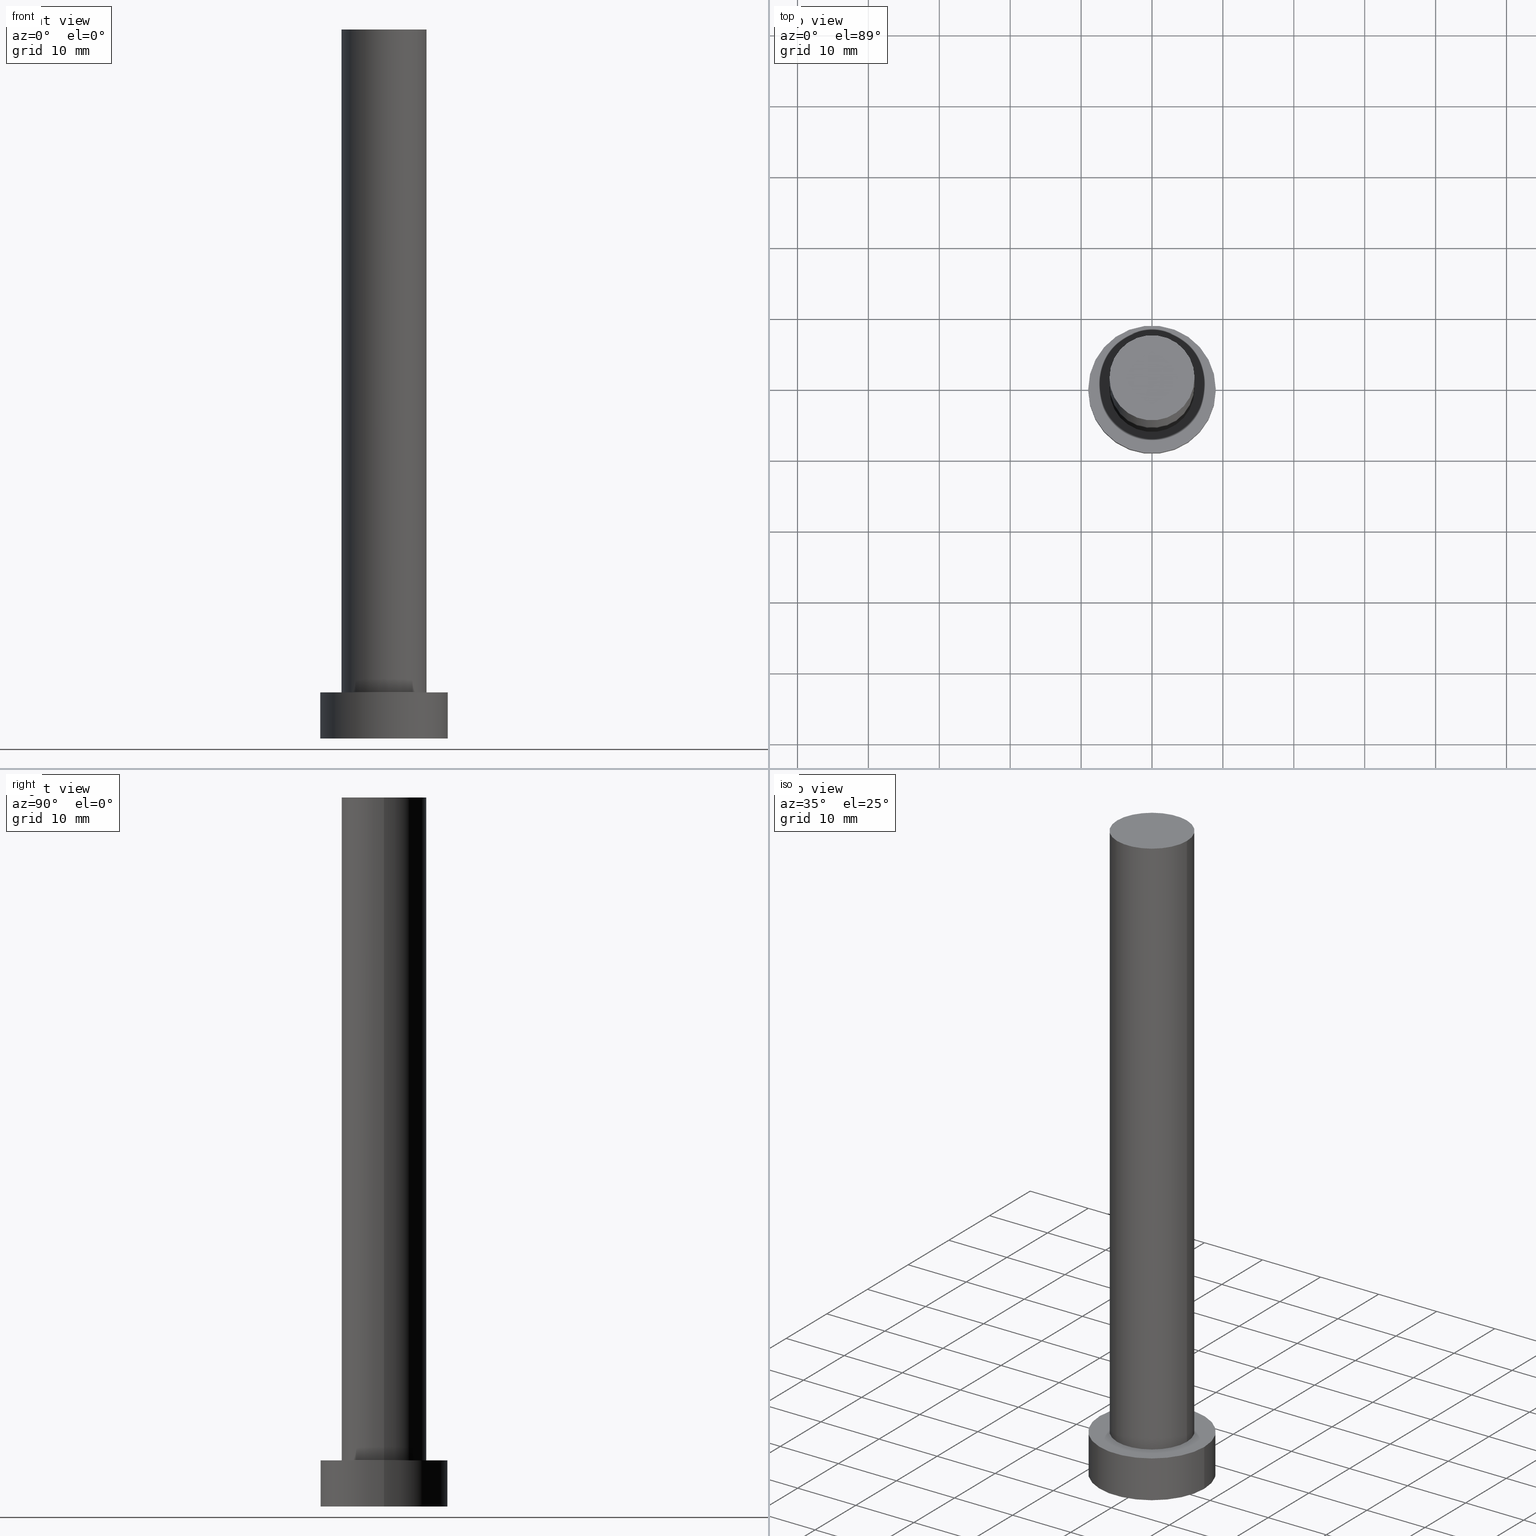
[diagram: canonical four-view strip — front | top / right | iso, engineering-drawing reading convention]
A machine part, canonical four-view strip (front | top / right | iso — engineering-drawing reading convention). The complete STEP part file that produces these views, byte-faithful:
ISO-10303-21;
HEADER;
FILE_DESCRIPTION (( 'STEP AP203' ),
    '1' );
FILE_NAME ('7825.STEP',
    '2023-02-13T11:33:00',
    ( '' ),
    ( '' ),
    'SwSTEP 2.0',
    'SolidWorks 2019',
    '' );
FILE_SCHEMA (( 'CONFIG_CONTROL_DESIGN' ));
ENDSEC;

DATA;
#1 = CARTESIAN_POINT ( 'NONE',  ( 0.000000000000000000, 0.000000000000000000, 0.000000000000000000 ) ) ;
#2 = CARTESIAN_POINT ( 'NONE',  ( 9.000000000000000000, 1.102182119232617517E-15, 6.500000000000000000 ) ) ;
#3 = EDGE_CURVE ( 'NONE', #230, #40, #189, .T. ) ;
#4 = APPROVAL_DATE_TIME ( #6, #162 ) ;
#5 = CARTESIAN_POINT ( 'NONE',  ( 0.000000000000000000, 0.000000000000000000, 100.0000000000000000 ) ) ;
#6 = DATE_AND_TIME ( #141, #70 ) ;
#7 = ORIENTED_EDGE ( 'NONE', *, *, #171, .T. ) ;
#8 = EDGE_CURVE ( 'NONE', #187, #230, #23, .T. ) ;
#9 = CIRCLE ( 'NONE', #106, 6.000000000000000888 ) ;
#10 = DATE_TIME_ROLE ( 'creation_date' ) ;
#11 = ORIENTED_EDGE ( 'NONE', *, *, #69, .F. ) ;
#12 = EDGE_CURVE ( 'NONE', #75, #40, #44, .T. ) ;
#13 = LINE ( 'NONE', #250, #249 ) ;
#14 = CARTESIAN_POINT ( 'NONE',  ( 0.000000000000000000, 0.000000000000000000, 100.0000000000000000 ) ) ;
#15 =( NAMED_UNIT ( * ) SI_UNIT ( $, .STERADIAN. ) SOLID_ANGLE_UNIT ( ) );
#16 = CARTESIAN_POINT ( 'NONE',  ( 9.000000000000000000, 1.102182119232617517E-15, 6.500000000000000000 ) ) ;
#17 = LOCAL_TIME ( 12, 33, 0.000000000000000000, #33 ) ;
#18 = ORIENTED_EDGE ( 'NONE', *, *, #69, .T. ) ;
#19 = CLOSED_SHELL ( 'NONE', ( #119, #244, #175, #237, #51, #155, #188 ) ) ;
#20 = DESIGN_CONTEXT ( 'detailed design', #90, 'design' ) ;
#21 = APPLICATION_CONTEXT ( 'configuration controlled 3d designs of mechanical parts and assemblies' ) ;
#22 = MANIFOLD_SOLID_BREP ( 'P�idat vysunut�m3', #19 ) ;
#23 = CIRCLE ( 'NONE', #115, 9.000000000000000000 ) ;
#24 = CARTESIAN_POINT ( 'NONE',  ( 0.000000000000000000, 0.000000000000000000, 100.0000000000000000 ) ) ;
#25 = ORIENTED_EDGE ( 'NONE', *, *, #251, .T. ) ;
#26 = CC_DESIGN_PERSON_AND_ORGANIZATION_ASSIGNMENT ( #225, #245, ( #204 ) ) ;
#27 = DIRECTION ( 'NONE',  ( 1.000000000000000000, 0.000000000000000000, -0.000000000000000000 ) ) ;
#28 = ORIENTED_EDGE ( 'NONE', *, *, #8, .T. ) ;
#29 = EDGE_CURVE ( 'NONE', #230, #187, #153, .T. ) ;
#30 = CYLINDRICAL_SURFACE ( 'NONE', #133, 9.000000000000000000 ) ;
#31 = APPROVAL_ROLE ( '' ) ;
#32 = ORIENTED_EDGE ( 'NONE', *, *, #45, .T. ) ;
#33 = COORDINATED_UNIVERSAL_TIME_OFFSET ( 1, 0, .AHEAD. ) ;
#34 = DIRECTION ( 'NONE',  ( 0.000000000000000000, 0.000000000000000000, 1.000000000000000000 ) ) ;
#35 = AXIS2_PLACEMENT_3D ( 'NONE', #215, #195, #213 ) ;
#36 = PERSON_AND_ORGANIZATION ( #113, #221 ) ;
#37 = DIRECTION ( 'NONE',  ( -0.000000000000000000, -0.000000000000000000, -1.000000000000000000 ) ) ;
#38 = PRODUCT ( '7825', '7825', '', ( #74 ) ) ;
#39 = DIRECTION ( 'NONE',  ( -0.000000000000000000, -0.000000000000000000, -1.000000000000000000 ) ) ;
#40 = VERTEX_POINT ( 'NONE', #184 ) ;
#41 = CIRCLE ( 'NONE', #193, 6.000000000000000888 ) ;
#42 = PERSON_AND_ORGANIZATION ( #113, #221 ) ;
#43 = CARTESIAN_POINT ( 'NONE',  ( -6.000000000000000888, 0.000000000000000000, 6.500000000000000000 ) ) ;
#44 = CIRCLE ( 'NONE', #196, 9.000000000000000000 ) ;
#45 = EDGE_CURVE ( 'NONE', #187, #75, #13, .T. ) ;
#46 = CARTESIAN_POINT ( 'NONE',  ( -6.000000000000000888, 0.000000000000000000, 100.0000000000000000 ) ) ;
#47 = CIRCLE ( 'NONE', #35, 6.000000000000000888 ) ;
#48 = CARTESIAN_POINT ( 'NONE',  ( 0.000000000000000000, 0.000000000000000000, 6.500000000000000000 ) ) ;
#49 = CARTESIAN_POINT ( 'NONE',  ( -9.000000000000000000, 0.000000000000000000, 6.500000000000000000 ) ) ;
#50 = COORDINATED_UNIVERSAL_TIME_OFFSET ( 1, 0, .AHEAD. ) ;
#51 = ADVANCED_FACE ( 'NONE', ( #150 ), #130, .F. ) ;
#52 = VECTOR ( 'NONE', #101, 1000.000000000000000 ) ;
#53 = DIRECTION ( 'NONE',  ( 0.000000000000000000, 0.000000000000000000, 1.000000000000000000 ) ) ;
#54 = APPROVAL_STATUS ( 'not_yet_approved' ) ;
#55 =( LENGTH_UNIT ( ) NAMED_UNIT ( * ) SI_UNIT ( .MILLI., .METRE. ) );
#56 = CALENDAR_DATE ( 2023, 13, 2 ) ;
#57 = CARTESIAN_POINT ( 'NONE',  ( 0.000000000000000000, 0.000000000000000000, 6.500000000000000000 ) ) ;
#58 = CIRCLE ( 'NONE', #86, 9.000000000000000000 ) ;
#59 = EDGE_LOOP ( 'NONE', ( #179, #168, #32, #103 ) ) ;
#60 = APPROVAL_DATE_TIME ( #229, #214 ) ;
#61 = EDGE_LOOP ( 'NONE', ( #205, #121 ) ) ;
#62 = EDGE_LOOP ( 'NONE', ( #11, #232, #201, #161 ) ) ;
#63 = PRODUCT_DEFINITION_SHAPE ( 'NONE', 'NONE',  #204 ) ;
#64 = ORIENTED_EDGE ( 'NONE', *, *, #143, .T. ) ;
#65 = DIRECTION ( 'NONE',  ( 1.000000000000000000, 0.000000000000000000, 0.000000000000000000 ) ) ;
#66 = PLANE ( 'NONE',  #88 ) ;
#67 = CARTESIAN_POINT ( 'NONE',  ( 6.000000000000000888, 7.347880794884120722E-16, 100.0000000000000000 ) ) ;
#68 = DIRECTION ( 'NONE',  ( 0.000000000000000000, 0.000000000000000000, 1.000000000000000000 ) ) ;
#69 = EDGE_CURVE ( 'NONE', #159, #254, #210, .T. ) ;
#70 = LOCAL_TIME ( 12, 33, 0.000000000000000000, #50 ) ;
#71 = CC_DESIGN_PERSON_AND_ORGANIZATION_ASSIGNMENT ( #36, #185, ( #109 ) ) ;
#72 =( NAMED_UNIT ( * ) PLANE_ANGLE_UNIT ( ) SI_UNIT ( $, .RADIAN. ) );
#73 = ORIENTED_EDGE ( 'NONE', *, *, #29, .F. ) ;
#74 = MECHANICAL_CONTEXT ( 'NONE', #21, 'mechanical' ) ;
#75 = VERTEX_POINT ( 'NONE', #111 ) ;
#76 = APPLICATION_PROTOCOL_DEFINITION ( 'international standard', 'config_control_design', 1994, #90 ) ;
#77 = DIRECTION ( 'NONE',  ( -0.000000000000000000, -0.000000000000000000, -1.000000000000000000 ) ) ;
#78 = CARTESIAN_POINT ( 'NONE',  ( 0.000000000000000000, 0.000000000000000000, 6.500000000000000000 ) ) ;
#79 = LOCAL_TIME ( 12, 33, 0.000000000000000000, #129 ) ;
#80 = FACE_OUTER_BOUND ( 'NONE', #198, .T. ) ;
#81 = CYLINDRICAL_SURFACE ( 'NONE', #190, 6.000000000000000888 ) ;
#82 = AXIS2_PLACEMENT_3D ( 'NONE', #127, #91, #160 ) ;
#83 = DIRECTION ( 'NONE',  ( 0.000000000000000000, 0.000000000000000000, 1.000000000000000000 ) ) ;
#84 = SECURITY_CLASSIFICATION_LEVEL ( 'unclassified' ) ;
#85 = CIRCLE ( 'NONE', #166, 6.000000000000000888 ) ;
#86 = AXIS2_PLACEMENT_3D ( 'NONE', #1, #83, #65 ) ;
#87 = FACE_OUTER_BOUND ( 'NONE', #228, .T. ) ;
#88 = AXIS2_PLACEMENT_3D ( 'NONE', #154, #68, #134 ) ;
#89 = CARTESIAN_POINT ( 'NONE',  ( 6.000000000000000888, 7.347880794884120722E-16, 6.500000000000000000 ) ) ;
#90 = APPLICATION_CONTEXT ( 'configuration controlled 3d designs of mechanical parts and assemblies' ) ;
#91 = DIRECTION ( 'NONE',  ( 0.000000000000000000, 0.000000000000000000, 1.000000000000000000 ) ) ;
#92 = APPROVAL_ROLE ( '' ) ;
#93 = DIRECTION ( 'NONE',  ( 1.000000000000000000, 0.000000000000000000, 0.000000000000000000 ) ) ;
#94 = ORIENTED_EDGE ( 'NONE', *, *, #29, .T. ) ;
#95 = APPROVAL_STATUS ( 'not_yet_approved' ) ;
#96 = DIRECTION ( 'NONE',  ( -1.000000000000000000, 0.000000000000000000, 0.000000000000000000 ) ) ;
#97 = APPROVAL_STATUS ( 'not_yet_approved' ) ;
#98 = DIRECTION ( 'NONE',  ( 0.000000000000000000, 0.000000000000000000, 1.000000000000000000 ) ) ;
#99 = CC_DESIGN_APPROVAL ( #214, ( #109 ) ) ;
#100 = CC_DESIGN_DATE_AND_TIME_ASSIGNMENT ( #116, #172, ( #238 ) ) ;
#101 = DIRECTION ( 'NONE',  ( -0.000000000000000000, -0.000000000000000000, -1.000000000000000000 ) ) ;
#102 = APPROVAL_ROLE ( '' ) ;
#103 = ORIENTED_EDGE ( 'NONE', *, *, #12, .T. ) ;
#104 = CARTESIAN_POINT ( 'NONE',  ( 0.000000000000000000, 0.000000000000000000, 6.500000000000000000 ) ) ;
#105 = LOCAL_TIME ( 12, 33, 0.000000000000000000, #246 ) ;
#106 = AXIS2_PLACEMENT_3D ( 'NONE', #78, #151, #152 ) ;
#107 = DATE_AND_TIME ( #123, #105 ) ;
#108 = CARTESIAN_POINT ( 'NONE',  ( 0.000000000000000000, 0.000000000000000000, 0.000000000000000000 ) ) ;
#109 = PRODUCT_DEFINITION_FORMATION_WITH_SPECIFIED_SOURCE ( 'LIBOVOLN�', '', #38, .NOT_KNOWN. ) ;
#110 = DIRECTION ( 'NONE',  ( 1.000000000000000000, 0.000000000000000000, 0.000000000000000000 ) ) ;
#111 = CARTESIAN_POINT ( 'NONE',  ( -9.000000000000000000, 0.000000000000000000, 0.000000000000000000 ) ) ;
#112 = EDGE_LOOP ( 'NONE', ( #73, #211, #7, #142 ) ) ;
#113 = PERSON ( 'NEUR�EN�', 'NEUR�EN�', 'NEUR�EN�', ('NEUR�EN�'), ('NEUR�EN�'), ('NEUR�EN�') ) ;
#114 = EDGE_LOOP ( 'NONE', ( #255, #241 ) ) ;
#115 = AXIS2_PLACEMENT_3D ( 'NONE', #57, #34, #124 ) ;
#116 = DATE_AND_TIME ( #218, #145 ) ;
#117 = FACE_BOUND ( 'NONE', #61, .T. ) ;
#118 = DIRECTION ( 'NONE',  ( -0.000000000000000000, -0.000000000000000000, -1.000000000000000000 ) ) ;
#119 = ADVANCED_FACE ( 'NONE', ( #80 ), #186, .T. ) ;
#120 = AXIS2_PLACEMENT_3D ( 'NONE', #148, #98, #110 ) ;
#121 = ORIENTED_EDGE ( 'NONE', *, *, #143, .F. ) ;
#122 = FACE_OUTER_BOUND ( 'NONE', #112, .T. ) ;
#123 = CALENDAR_DATE ( 2023, 13, 2 ) ;
#124 = DIRECTION ( 'NONE',  ( 1.000000000000000000, 0.000000000000000000, 0.000000000000000000 ) ) ;
#125 = PERSON_AND_ORGANIZATION ( #113, #221 ) ;
#126 = CC_DESIGN_PERSON_AND_ORGANIZATION_ASSIGNMENT ( #42, #235, ( #238 ) ) ;
#127 = CARTESIAN_POINT ( 'NONE',  ( 0.000000000000000000, 0.000000000000000000, 0.000000000000000000 ) ) ;
#128 = DIRECTION ( 'NONE',  ( 1.000000000000000000, 0.000000000000000000, -0.000000000000000000 ) ) ;
#129 = COORDINATED_UNIVERSAL_TIME_OFFSET ( 1, 0, .AHEAD. ) ;
#130 = PLANE ( 'NONE',  #169 ) ;
#131 = DATE_AND_TIME ( #56, #79 ) ;
#132 = DIRECTION ( 'NONE',  ( 1.000000000000000000, 0.000000000000000000, 0.000000000000000000 ) ) ;
#133 = AXIS2_PLACEMENT_3D ( 'NONE', #104, #242, #177 ) ;
#134 = DIRECTION ( 'NONE',  ( 1.000000000000000000, 0.000000000000000000, -0.000000000000000000 ) ) ;
#135 = VECTOR ( 'NONE', #37, 1000.000000000000000 ) ;
#136 = LINE ( 'NONE', #46, #52 ) ;
#137 = AXIS2_PLACEMENT_3D ( 'NONE', #144, #53, #27 ) ;
#138 = DIRECTION ( 'NONE',  ( 1.000000000000000000, 0.000000000000000000, 0.000000000000000000 ) ) ;
#139 = VERTEX_POINT ( 'NONE', #164 ) ;
#140 = APPROVAL ( #97, 'NEUR�EN�' ) ;
#141 = CALENDAR_DATE ( 2023, 13, 2 ) ;
#142 = ORIENTED_EDGE ( 'NONE', *, *, #45, .F. ) ;
#143 = EDGE_CURVE ( 'NONE', #254, #200, #9, .T. ) ;
#144 = CARTESIAN_POINT ( 'NONE',  ( 0.000000000000000000, 0.000000000000000000, 6.500000000000000000 ) ) ;
#145 = LOCAL_TIME ( 12, 33, 0.000000000000000000, #194 ) ;
#146 = PERSON_AND_ORGANIZATION ( #113, #221 ) ;
#147 = ORIENTED_EDGE ( 'NONE', *, *, #222, .F. ) ;
#148 = CARTESIAN_POINT ( 'NONE',  ( 0.000000000000000000, 0.000000000000000000, 6.500000000000000000 ) ) ;
#149 = APPROVAL_DATE_TIME ( #131, #140 ) ;
#150 = FACE_OUTER_BOUND ( 'NONE', #114, .T. ) ;
#151 = DIRECTION ( 'NONE',  ( 0.000000000000000000, 0.000000000000000000, 1.000000000000000000 ) ) ;
#152 = DIRECTION ( 'NONE',  ( 1.000000000000000000, 0.000000000000000000, 0.000000000000000000 ) ) ;
#153 = CIRCLE ( 'NONE', #120, 9.000000000000000000 ) ;
#154 = CARTESIAN_POINT ( 'NONE',  ( 0.000000000000000000, 0.000000000000000000, 100.0000000000000000 ) ) ;
#155 = ADVANCED_FACE ( 'NONE', ( #236 ), #81, .T. ) ;
#156 = CC_DESIGN_SECURITY_CLASSIFICATION ( #238, ( #109 ) ) ;
#157 = CC_DESIGN_DATE_AND_TIME_ASSIGNMENT ( #107, #10, ( #204 ) ) ;
#158 = DIRECTION ( 'NONE',  ( 0.000000000000000000, 0.000000000000000000, 1.000000000000000000 ) ) ;
#159 = VERTEX_POINT ( 'NONE', #67 ) ;
#160 = DIRECTION ( 'NONE',  ( 1.000000000000000000, 0.000000000000000000, 0.000000000000000000 ) ) ;
#161 = ORIENTED_EDGE ( 'NONE', *, *, #182, .T. ) ;
#162 = APPROVAL ( #54, 'NEUR�EN�' ) ;
#163 = PERSON_AND_ORGANIZATION ( #113, #221 ) ;
#164 = CARTESIAN_POINT ( 'NONE',  ( -6.000000000000000888, 0.000000000000000000, 100.0000000000000000 ) ) ;
#165 = APPROVAL_PERSON_ORGANIZATION ( #227, #140, #31 ) ;
#166 = AXIS2_PLACEMENT_3D ( 'NONE', #5, #158, #138 ) ;
#167 = CARTESIAN_POINT ( 'NONE',  ( 0.000000000000000000, 0.000000000000000000, 0.000000000000000000 ) ) ;
#168 = ORIENTED_EDGE ( 'NONE', *, *, #8, .F. ) ;
#169 = AXIS2_PLACEMENT_3D ( 'NONE', #167, #252, #128 ) ;
#170 = DIRECTION ( 'NONE',  ( -0.000000000000000000, -0.000000000000000000, -1.000000000000000000 ) ) ;
#171 = EDGE_CURVE ( 'NONE', #40, #75, #58, .T. ) ;
#172 = DATE_TIME_ROLE ( 'classification_date' ) ;
#173 = CYLINDRICAL_SURFACE ( 'NONE', #202, 9.000000000000000000 ) ;
#174 = FACE_OUTER_BOUND ( 'NONE', #59, .T. ) ;
#175 = ADVANCED_FACE ( 'NONE', ( #174 ), #173, .T. ) ;
#176 = SHAPE_DEFINITION_REPRESENTATION ( #63, #208 ) ;
#177 = DIRECTION ( 'NONE',  ( -1.000000000000000000, 0.000000000000000000, 0.000000000000000000 ) ) ;
#178 = PERSON_AND_ORGANIZATION ( #113, #221 ) ;
#179 = ORIENTED_EDGE ( 'NONE', *, *, #3, .F. ) ;
#180 = VECTOR ( 'NONE', #226, 1000.000000000000000 ) ;
#181 = ORIENTED_EDGE ( 'NONE', *, *, #191, .T. ) ;
#182 = EDGE_CURVE ( 'NONE', #200, #254, #41, .T. ) ;
#183 = CALENDAR_DATE ( 2023, 13, 2 ) ;
#184 = CARTESIAN_POINT ( 'NONE',  ( 9.000000000000000000, 1.102182119232617517E-15, 0.000000000000000000 ) ) ;
#185 = PERSON_AND_ORGANIZATION_ROLE ( 'design_supplier' ) ;
#186 = CYLINDRICAL_SURFACE ( 'NONE', #220, 6.000000000000000888 ) ;
#187 = VERTEX_POINT ( 'NONE', #49 ) ;
#188 = ADVANCED_FACE ( 'NONE', ( #212 ), #66, .T. ) ;
#189 = LINE ( 'NONE', #16, #180 ) ;
#190 = AXIS2_PLACEMENT_3D ( 'NONE', #24, #170, #216 ) ;
#191 = EDGE_CURVE ( 'NONE', #139, #159, #47, .T. ) ;
#192 = DIRECTION ( 'NONE',  ( -1.000000000000000000, 0.000000000000000000, 0.000000000000000000 ) ) ;
#193 = AXIS2_PLACEMENT_3D ( 'NONE', #48, #239, #132 ) ;
#194 = COORDINATED_UNIVERSAL_TIME_OFFSET ( 1, 0, .AHEAD. ) ;
#195 = DIRECTION ( 'NONE',  ( 0.000000000000000000, 0.000000000000000000, 1.000000000000000000 ) ) ;
#196 = AXIS2_PLACEMENT_3D ( 'NONE', #108, #247, #93 ) ;
#197 = CC_DESIGN_PERSON_AND_ORGANIZATION_ASSIGNMENT ( #146, #248, ( #38 ) ) ;
#198 = EDGE_LOOP ( 'NONE', ( #243, #18, #64, #147 ) ) ;
#199 = APPROVAL_PERSON_ORGANIZATION ( #178, #162, #102 ) ;
#200 = VERTEX_POINT ( 'NONE', #43 ) ;
#201 = ORIENTED_EDGE ( 'NONE', *, *, #222, .T. ) ;
#202 = AXIS2_PLACEMENT_3D ( 'NONE', #234, #118, #192 ) ;
#203 = APPLICATION_PROTOCOL_DEFINITION ( 'international standard', 'config_control_design', 1994, #21 ) ;
#204 = PRODUCT_DEFINITION ( 'NEZN�M�', '', #109, #20 ) ;
#205 = ORIENTED_EDGE ( 'NONE', *, *, #182, .F. ) ;
#206 = CC_DESIGN_APPROVAL ( #162, ( #238 ) ) ;
#207 = PERSON_AND_ORGANIZATION_ROLE ( 'creator' ) ;
#208 = ADVANCED_BREP_SHAPE_REPRESENTATION ( '7825', ( #22, #82 ), #231 ) ;
#209 = CARTESIAN_POINT ( 'NONE',  ( 6.000000000000000888, 7.347880794884120722E-16, 100.0000000000000000 ) ) ;
#210 = LINE ( 'NONE', #209, #135 ) ;
#211 = ORIENTED_EDGE ( 'NONE', *, *, #3, .T. ) ;
#212 = FACE_OUTER_BOUND ( 'NONE', #233, .T. ) ;
#213 = DIRECTION ( 'NONE',  ( 1.000000000000000000, 0.000000000000000000, 0.000000000000000000 ) ) ;
#214 = APPROVAL ( #95, 'NEUR�EN�' ) ;
#215 = CARTESIAN_POINT ( 'NONE',  ( 0.000000000000000000, 0.000000000000000000, 100.0000000000000000 ) ) ;
#216 = DIRECTION ( 'NONE',  ( -1.000000000000000000, 0.000000000000000000, 0.000000000000000000 ) ) ;
#217 = CC_DESIGN_APPROVAL ( #140, ( #204 ) ) ;
#218 = CALENDAR_DATE ( 2023, 13, 2 ) ;
#219 = CC_DESIGN_PERSON_AND_ORGANIZATION_ASSIGNMENT ( #163, #207, ( #109 ) ) ;
#220 = AXIS2_PLACEMENT_3D ( 'NONE', #14, #39, #96 ) ;
#221 = ORGANIZATION ( 'NEUR�EN�', 'NEUR�EN�', '' ) ;
#222 = EDGE_CURVE ( 'NONE', #139, #200, #136, .T. ) ;
#223 = PLANE ( 'NONE',  #137 ) ;
#224 = APPROVAL_PERSON_ORGANIZATION ( #125, #214, #92 ) ;
#225 = PERSON_AND_ORGANIZATION ( #113, #221 ) ;
#226 = DIRECTION ( 'NONE',  ( -0.000000000000000000, -0.000000000000000000, -1.000000000000000000 ) ) ;
#227 = PERSON_AND_ORGANIZATION ( #113, #221 ) ;
#228 = EDGE_LOOP ( 'NONE', ( #28, #94 ) ) ;
#229 = DATE_AND_TIME ( #183, #17 ) ;
#230 = VERTEX_POINT ( 'NONE', #2 ) ;
#231 =( GEOMETRIC_REPRESENTATION_CONTEXT ( 3 ) GLOBAL_UNCERTAINTY_ASSIGNED_CONTEXT ( ( #253 ) ) GLOBAL_UNIT_ASSIGNED_CONTEXT ( ( #55, #72, #15 ) ) REPRESENTATION_CONTEXT ( 'NONE', 'WORKASPACE' ) );
#232 = ORIENTED_EDGE ( 'NONE', *, *, #191, .F. ) ;
#233 = EDGE_LOOP ( 'NONE', ( #181, #25 ) ) ;
#234 = CARTESIAN_POINT ( 'NONE',  ( 0.000000000000000000, 0.000000000000000000, 6.500000000000000000 ) ) ;
#235 = PERSON_AND_ORGANIZATION_ROLE ( 'classification_officer' ) ;
#236 = FACE_OUTER_BOUND ( 'NONE', #62, .T. ) ;
#237 = ADVANCED_FACE ( 'NONE', ( #117, #87 ), #223, .T. ) ;
#238 = SECURITY_CLASSIFICATION ( '', '', #84 ) ;
#239 = DIRECTION ( 'NONE',  ( 0.000000000000000000, 0.000000000000000000, 1.000000000000000000 ) ) ;
#240 = PRODUCT_RELATED_PRODUCT_CATEGORY ( 'detail', '', ( #38 ) ) ;
#241 = ORIENTED_EDGE ( 'NONE', *, *, #171, .F. ) ;
#242 = DIRECTION ( 'NONE',  ( -0.000000000000000000, -0.000000000000000000, -1.000000000000000000 ) ) ;
#243 = ORIENTED_EDGE ( 'NONE', *, *, #251, .F. ) ;
#244 = ADVANCED_FACE ( 'NONE', ( #122 ), #30, .T. ) ;
#245 = PERSON_AND_ORGANIZATION_ROLE ( 'creator' ) ;
#246 = COORDINATED_UNIVERSAL_TIME_OFFSET ( 1, 0, .AHEAD. ) ;
#247 = DIRECTION ( 'NONE',  ( 0.000000000000000000, 0.000000000000000000, 1.000000000000000000 ) ) ;
#248 = PERSON_AND_ORGANIZATION_ROLE ( 'design_owner' ) ;
#249 = VECTOR ( 'NONE', #77, 1000.000000000000000 ) ;
#250 = CARTESIAN_POINT ( 'NONE',  ( -9.000000000000000000, 0.000000000000000000, 6.500000000000000000 ) ) ;
#251 = EDGE_CURVE ( 'NONE', #159, #139, #85, .T. ) ;
#252 = DIRECTION ( 'NONE',  ( 0.000000000000000000, 0.000000000000000000, 1.000000000000000000 ) ) ;
#253 = UNCERTAINTY_MEASURE_WITH_UNIT (LENGTH_MEASURE( 1.000000000000000082E-05 ), #55, 'distance_accuracy_value', 'NONE');
#254 = VERTEX_POINT ( 'NONE', #89 ) ;
#255 = ORIENTED_EDGE ( 'NONE', *, *, #12, .F. ) ;
ENDSEC;
END-ISO-10303-21;
